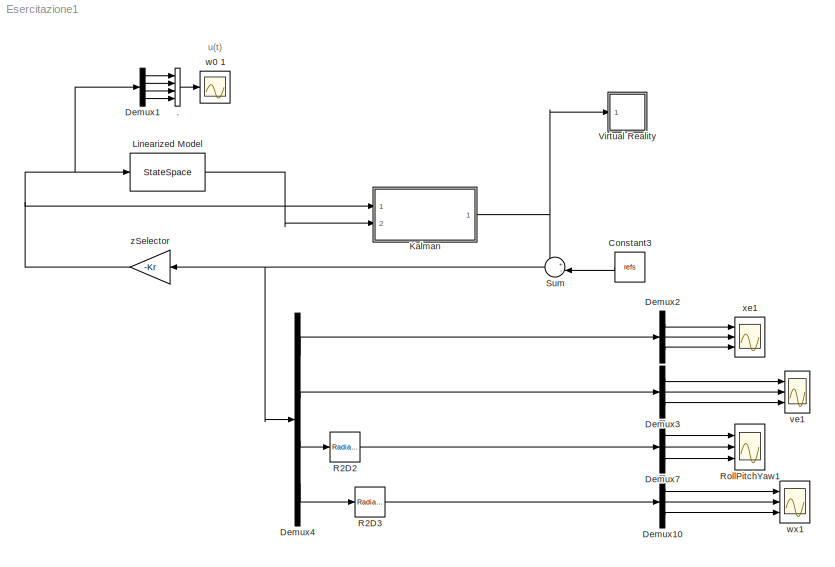
MODEL Esercitazione1
KIND model
BLOCK [Concatenate] .
  NumInputs = 4
  Ports = [4, 1]
  SID = 1
BLOCK [Constant] Constant3
  SID = 3
  Value = refs
BLOCK [Demux] Demux1
  DisplayOption = bar
  Ports = [1, 4]
  SID = 4
BLOCK [Demux] Demux10
  DisplayOption = bar
  Outputs = 3
  Ports = [1, 3]
  SID = 5
BLOCK [Demux] Demux2
  DisplayOption = bar
  Outputs = 3
  Ports = [1, 3]
  SID = 6
BLOCK [Demux] Demux3
  DisplayOption = bar
  Outputs = 3
  Ports = [1, 3]
  SID = 7
BLOCK [Demux] Demux4
  DisplayOption = bar
  Ports = [1, 4]
  SID = 8
BLOCK [Demux] Demux7
  DisplayOption = bar
  Outputs = 3
  Ports = [1, 3]
  SID = 9
BLOCK [SubSystem] Kalman
  FunctionWithSeparateData = off
  MaskHideContents = off
  MinAlgLoopOccurrences = off
  Opaque = off
  Ports = [2, 1]
  PropExecContextOutsideSubsystem = off
  RTWSystemCode = Auto
  RequestExecContextInheritance = off
  SID = 10
BLOCK [Demux] Kalman/Demux
  DisplayOption = bar
  Outputs = 3
  Ports = [1, 3]
  SID = 13
BLOCK [Demux] Kalman/Demux1
  DisplayOption = bar
  Outputs = 3
  Ports = [1, 3]
  SID = 14
BLOCK [Demux] Kalman/Demux2
  DisplayOption = bar
  Ports = [1, 4]
  SID = 15
BLOCK [Demux] Kalman/Demux3
  DisplayOption = bar
  Outputs = 3
  Ports = [1, 3]
  SID = 16
BLOCK [Demux] Kalman/Demux4
  DisplayOption = bar
  Outputs = 3
  Ports = [1, 3]
  SID = 17
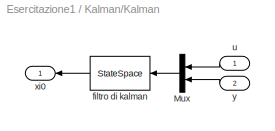
BLOCK [SubSystem] Kalman/Kalman
  FunctionWithSeparateData = off
  MaskHideContents = off
  MinAlgLoopOccurrences = off
  Opaque = off
  Ports = [2, 1]
  PropExecContextOutsideSubsystem = off
  RTWSystemCode = Auto
  RequestExecContextInheritance = off
  SID = 18
BLOCK [Mux] Kalman/Kalman/Mux
  DisplayOption = bar
  Inputs = [4 12]
  Ports = [2, 1]
  SID = 21
BLOCK [StateSpace] Kalman/Kalman/filtro di kalman
  A = Aoss
  B = Boss
  C = Coss
  D = Doss
  SID = 22
BLOCK [Inport] Kalman/Kalman/u
  IconDisplay = Port number
  SID = 19
BLOCK [Outport] Kalman/Kalman/xi0
  IconDisplay = Port number
  SID = 23
BLOCK [Inport] Kalman/Kalman/y
  IconDisplay = Port number
  Port = 2
  SID = 20
BLOCK [Reference] Kalman/R2D  REF=simulink_extras/Transformations/Radians\nto Degrees
  Ports = [1, 1]
  SID = 24
  SourceBlock = simulink_extras/Transformations/Radians\nto Degrees
  SourceType = RadiansToDegrees
BLOCK [Reference] Kalman/R2D1  REF=simulink_extras/Transformations/Radians\nto Degrees
  Ports = [1, 1]
  SID = 25
  SourceBlock = simulink_extras/Transformations/Radians\nto Degrees
  SourceType = RadiansToDegrees
BLOCK [Scope] Kalman/RollPitchYaw
  DataFormat = StructureWithTime
  Floating = off
  NumInputPorts = 3
  Ports = [3]
  SID = 26
  SampleTime = 0
  SaveName = ScopeData20
  ShowLegends = off
  YMax = 5~5~5
  YMin = -5~-5~-5
BLOCK [Sum] Kalman/Sum
  IconShape = round
  InputSameDT = off
  Inputs = +-
  OutDataTypeStr = Inherit: Inherit via internal rule
  Ports = [2, 1]
  SID = 27
  SaturateOnIntegerOverflow = off
BLOCK [Outport] Kalman/Xest
  IconDisplay = Port number
  SID = 31
BLOCK [Inport] Kalman/u
  IconDisplay = Port number
  SID = 11
BLOCK [Scope] Kalman/ve
  DataFormat = StructureWithTime
  Floating = off
  NumInputPorts = 3
  Ports = [3]
  SID = 28
  SampleTime = 0
  SaveName = ScopeData21
  ShowLegends = off
  YMax = 5~5~5
  YMin = -5~-5~-5
BLOCK [Scope] Kalman/wx
  DataFormat = StructureWithTime
  Floating = off
  NumInputPorts = 3
  Ports = [3]
  SID = 29
  SampleTime = 0
  SaveName = ScopeData22
  ShowLegends = off
  TimeRange = 15
  YMax = 5~5~5
  YMin = -5~-5~-5
BLOCK [Scope] Kalman/xe
  DataFormat = StructureWithTime
  Floating = off
  LimitDataPoints = off
  NumInputPorts = 3
  Ports = [3]
  SID = 30
  SampleTime = 0
  SaveName = ScopeData24
  ShowLegends = off
  TimeRange = 15
  YMax = 0.0035~0.007~-20
  YMin = -0.0035~-0.007~-20
BLOCK [Inport] Kalman/y
  IconDisplay = Port number
  Port = 2
  SID = 12
BLOCK [StateSpace] Linearized Model
  A = A
  B = B
  C = C
  D = [D]
  SID = 33
  X0 = [0 0 0 0 0 0 0 0 0 0 0 0]
BLOCK [Reference] R2D2  REF=simulink_extras/Transformations/Radians\nto Degrees
  Ports = [1, 1]
  SID = 34
  SourceBlock = simulink_extras/Transformations/Radians\nto Degrees
  SourceType = RadiansToDegrees
BLOCK [Reference] R2D3  REF=simulink_extras/Transformations/Radians\nto Degrees
  Ports = [1, 1]
  SID = 35
  SourceBlock = simulink_extras/Transformations/Radians\nto Degrees
  SourceType = RadiansToDegrees
BLOCK [Scope] RollPitchYaw1
  DataFormat = StructureWithTime
  Floating = off
  NumInputPorts = 3
  Ports = [3]
  SID = 36
  SampleTime = 0
  SaveName = ScopeData1
  ShowLegends = off
  YMax = 5~5~5
  YMin = -5~-5~-5
BLOCK [Sum] Sum
  IconShape = round
  InputSameDT = off
  Inputs = +-|
  OutDataTypeStr = Inherit: Inherit via internal rule
  Ports = [2, 1]
  SID = 37
  SaturateOnIntegerOverflow = off
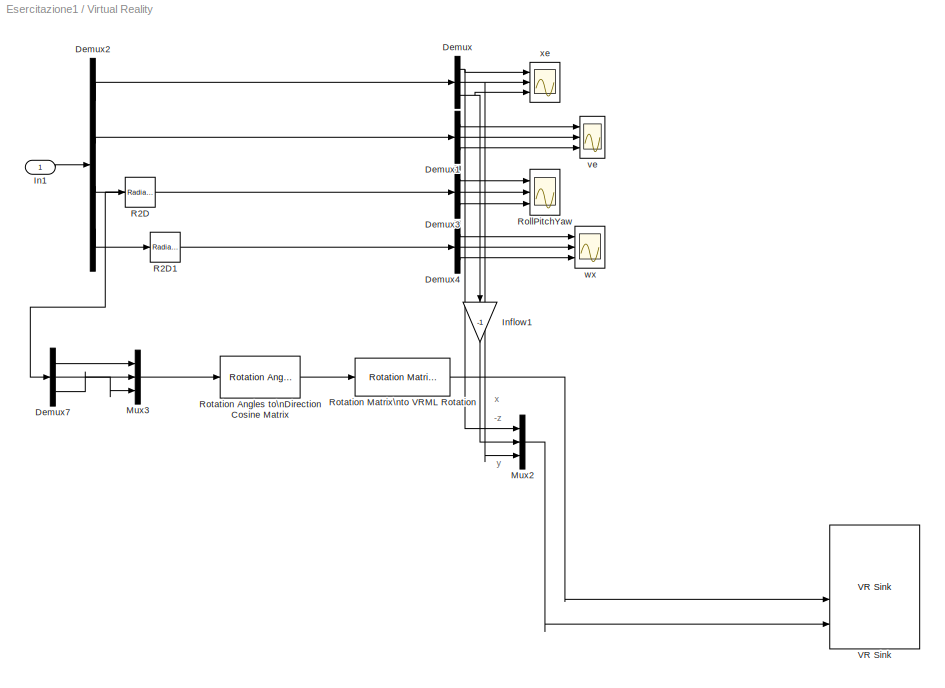
BLOCK [SubSystem] Virtual Reality
  FunctionWithSeparateData = off
  MaskHideContents = off
  MinAlgLoopOccurrences = off
  Opaque = off
  Ports = [1]
  PropExecContextOutsideSubsystem = off
  RTWSystemCode = Auto
  RequestExecContextInheritance = off
  SID = 39
BLOCK [Demux] Virtual Reality/Demux
  DisplayOption = bar
  Outputs = 3
  Ports = [1, 3]
  SID = 42
BLOCK [Demux] Virtual Reality/Demux1
  DisplayOption = bar
  Outputs = 3
  Ports = [1, 3]
  SID = 43
BLOCK [Demux] Virtual Reality/Demux2
  DisplayOption = bar
  Ports = [1, 4]
  SID = 46
BLOCK [Demux] Virtual Reality/Demux3
  DisplayOption = bar
  Outputs = 3
  Ports = [1, 3]
  SID = 47
BLOCK [Demux] Virtual Reality/Demux4
  DisplayOption = bar
  Outputs = 3
  Ports = [1, 3]
  SID = 48
BLOCK [Demux] Virtual Reality/Demux7
  DisplayOption = bar
  Outputs = 3
  Ports = [1, 3]
  SID = 51
BLOCK [Inport] Virtual Reality/In1
  IconDisplay = Port number
  SID = 40
BLOCK [Gain] Virtual Reality/Inflow1
  Gain = -1
  OutDataTypeStr = Inherit: Inherit via internal rule
  ParamDataTypeStr = Inherit: Inherit via internal rule
  SID = 54
  SaturateOnIntegerOverflow = off
BLOCK [Mux] Virtual Reality/Mux2
  DisplayOption = bar
  Inputs = 3
  Ports = [3, 1]
  SID = 57
BLOCK [Mux] Virtual Reality/Mux3
  DisplayOption = bar
  Inputs = 3
  Ports = [3, 1]
  SID = 58
BLOCK [Reference] Virtual Reality/R2D  REF=simulink_extras/Transformations/Radians\nto Degrees
  Ports = [1, 1]
  SID = 60
  SourceBlock = simulink_extras/Transformations/Radians\nto Degrees
  SourceType = RadiansToDegrees
BLOCK [Reference] Virtual Reality/R2D1  REF=simulink_extras/Transformations/Radians\nto Degrees
  Ports = [1, 1]
  SID = 61
  SourceBlock = simulink_extras/Transformations/Radians\nto Degrees
  SourceType = RadiansToDegrees
BLOCK [Scope] Virtual Reality/RollPitchYaw
  DataFormat = StructureWithTime
  Floating = off
  NumInputPorts = 3
  Ports = [3]
  SID = 64
  SampleTime = 0
  SaveName = ScopeData6
  ShowLegends = off
  YMax = 5~5~5
  YMin = -5~-5~-5
BLOCK [Reference] Virtual Reality/Rotation Angles to\nDirection Cosine Matrix  REF=aerolibtransform2/Rotation Angles to\nDirection Cosine Matrix
  AttributesFormatString = Rotation Order: %<rotationOrder>
  Ports = [1, 1]
  SID = 66
  SourceBlock = aerolibtransform2/Rotation Angles to\nDirection Cosine Matrix
  SourceType = Ang2DCM
  rotationOrder = ZYX
BLOCK [Reference] Virtual Reality/Rotation Matrix\nto VRML Rotation  REF=vrlib/Utilities/Rotation Matrix\nto VRML Rotation
  Ports = [1, 1]
  SID = 68
  SourceBlock = vrlib/Utilities/Rotation Matrix\nto VRML Rotation
  SourceType = Rotation Matrix to VRML Rotation
  maxzero = 1e-12
BLOCK [Reference] Virtual Reality/VR Sink  REF=vrlib/VR Sink
  AllowVariableSize = off
  AutoView = off
  FieldsWritten = Lin.rotation.4.1.1.double#Lin.translation.3.1.1.double#NonLin.rotation.4.1.1.double#NonLin.translation.3.1.1.double
  Ports = [4]
  RemoteChange = off
  RemoteView = off
  SID = 70
  SampleTime = 0.05
  SourceBlock = vrlib/VR Sink
  SourceType = Virtual Reality Sink
  VideoDimensions = []
  ViewEnable = on
  WorldFileName = aero.wrl
BLOCK [Scope] Virtual Reality/ve
  DataFormat = StructureWithTime
  Floating = off
  NumInputPorts = 3
  Ports = [3]
  SID = 71
  SampleTime = 0
  SaveName = ScopeData2
  ShowLegends = off
  YMax = 5~5~5
  YMin = -5~-5~-5
BLOCK [Scope] Virtual Reality/wx
  DataFormat = StructureWithTime
  Floating = off
  NumInputPorts = 3
  Ports = [3]
  SID = 73
  SampleTime = 0
  SaveName = ScopeData9
  ShowLegends = off
  TimeRange = 15
  YMax = 5~5~5
  YMin = -5~-5~-5
BLOCK [Scope] Virtual Reality/xe
  DataFormat = StructureWithTime
  Floating = off
  NumInputPorts = 3
  Ports = [3]
  SID = 75
  SampleTime = 0
  ShowLegends = off
  TimeRange = 15
  YMax = -100~-30~300
  YMin = -190~-150~-250
BLOCK [Scope] ve1
  DataFormat = StructureWithTime
  Floating = off
  NumInputPorts = 3
  Ports = [3]
  SID = 81
  SampleTime = 0
  SaveName = ScopeData3
  ShowLegends = off
  YMax = 5~5~5
  YMin = -5~-5~-5
BLOCK [Scope] w0  1
  DataFormat = StructureWithTime
  Floating = off
  NumInputPorts = 1
  Ports = [1]
  SID = 82
  SampleTime = 0
  SaveName = ScopeData4
  ShowLegends = off
  YMax = 4700
  YMin = 2700
BLOCK [Scope] wx1
  DataFormat = StructureWithTime
  Floating = off
  NumInputPorts = 3
  Ports = [3]
  SID = 83
  SampleTime = 0
  SaveName = ScopeData5
  ShowLegends = off
  TimeRange = 15
  YMax = 5~5~5
  YMin = -5~-5~-5
BLOCK [Scope] xe1
  DataFormat = StructureWithTime
  Floating = off
  LimitDataPoints = off
  NumInputPorts = 3
  Ports = [3]
  SID = 84
  SampleTime = 0
  SaveName = ScopeData7
  ShowLegends = off
  TimeRange = 15
  YMax = 3e+278~3e+278~3e+278
  YMin = -2.5e+277~-2.5e+277~-2.5e+277
BLOCK [Gain] zSelector
  Gain = -Kr
  Multiplication = Matrix(K*u)
  OutDataTypeStr = Inherit: Inherit via internal rule
  ParamDataTypeStr = Inherit: Inherit via internal rule
  SID = 85
  SaturateOnIntegerOverflow = off
ANNOTATION (root): u(t)
ANNOTATION Kalman: 
ANNOTATION Virtual Reality: -z
ANNOTATION Virtual Reality: x
ANNOTATION Virtual Reality: y
LINE .:1 -> w0  1:1
LINE Constant3:1 -> Sum:2
LINE Demux10:1 -> wx1:1
LINE Demux10:2 -> wx1:2
LINE Demux10:3 -> wx1:3
LINE Demux1:1 -> .:1
LINE Demux1:2 -> .:2
LINE Demux1:3 -> .:3
LINE Demux1:4 -> .:4
LINE Demux2:1 -> xe1:1
LINE Demux2:2 -> xe1:2
LINE Demux2:3 -> xe1:3
LINE Demux3:1 -> ve1:1
LINE Demux3:2 -> ve1:2
LINE Demux3:3 -> ve1:3
LINE Demux4:1 -> Demux2:1
LINE Demux4:2 -> Demux3:1
LINE Demux4:3 -> R2D2:1
LINE Demux4:4 -> R2D3:1
LINE Demux7:1 -> RollPitchYaw1:1
LINE Demux7:2 -> RollPitchYaw1:2
LINE Demux7:3 -> RollPitchYaw1:3
LINE Kalman/Demux1:1 -> Kalman/ve:1
LINE Kalman/Demux1:2 -> Kalman/ve:2
LINE Kalman/Demux1:3 -> Kalman/ve:3
LINE Kalman/Demux2:1 -> Kalman/Demux:1
LINE Kalman/Demux2:2 -> Kalman/Demux1:1
LINE Kalman/Demux2:3 -> Kalman/R2D:1
LINE Kalman/Demux2:4 -> Kalman/R2D1:1
LINE Kalman/Demux3:1 -> Kalman/RollPitchYaw:1
LINE Kalman/Demux3:2 -> Kalman/RollPitchYaw:2
LINE Kalman/Demux3:3 -> Kalman/RollPitchYaw:3
LINE Kalman/Demux4:1 -> Kalman/wx:1
LINE Kalman/Demux4:2 -> Kalman/wx:2
LINE Kalman/Demux4:3 -> Kalman/wx:3
LINE Kalman/Demux:1 -> Kalman/xe:1
LINE Kalman/Demux:2 -> Kalman/xe:2
LINE Kalman/Demux:3 -> Kalman/xe:3
LINE Kalman/Kalman/Mux:1 -> Kalman/Kalman/filtro di kalman:1
LINE Kalman/Kalman/filtro di kalman:1 -> Kalman/Kalman/xi0:1
LINE Kalman/Kalman/u:1 -> Kalman/Kalman/Mux:1
LINE Kalman/Kalman/y:1 -> Kalman/Kalman/Mux:2
NET Kalman/Kalman:1 -> Kalman/Demux2:1, Kalman/Sum:2, Kalman/Xest:1
LINE Kalman/R2D1:1 -> Kalman/Demux4:1
LINE Kalman/R2D:1 -> Kalman/Demux3:1
LINE Kalman/u:1 -> Kalman/Kalman:1
NET Kalman/y:1 -> Kalman/Kalman:2, Kalman/Sum:1
NET Kalman:1 -> Sum:1, Virtual Reality:1
LINE Linearized Model:1 -> Kalman:2
LINE R2D2:1 -> Demux7:1
LINE R2D3:1 -> Demux10:1
NET Sum:1 -> Demux4:1, zSelector:1
LINE Virtual Reality/Demux1:1 -> Virtual Reality/ve:1
LINE Virtual Reality/Demux1:2 -> Virtual Reality/ve:2
LINE Virtual Reality/Demux1:3 -> Virtual Reality/ve:3
LINE Virtual Reality/Demux2:1 -> Virtual Reality/Demux:1
LINE Virtual Reality/Demux2:2 -> Virtual Reality/Demux1:1
LINE Virtual Reality/Demux2:3 -> Virtual Reality/R2D:1
LINE Virtual Reality/Demux2:4 -> Virtual Reality/R2D1:1
LINE Virtual Reality/Demux3:1 -> Virtual Reality/RollPitchYaw:1
LINE Virtual Reality/Demux3:2 -> Virtual Reality/RollPitchYaw:2
LINE Virtual Reality/Demux3:3 -> Virtual Reality/RollPitchYaw:3
LINE Virtual Reality/Demux4:1 -> Virtual Reality/wx:1
LINE Virtual Reality/Demux4:2 -> Virtual Reality/wx:2
LINE Virtual Reality/Demux4:3 -> Virtual Reality/wx:3
LINE Virtual Reality/Demux7:1 -> Virtual Reality/Mux3:1
LINE Virtual Reality/Demux7:2 -> Virtual Reality/Mux3:3
LINE Virtual Reality/Demux7:3 -> Virtual Reality/Mux3:2
NET Virtual Reality/Demux:1 -> Virtual Reality/Mux2:1, Virtual Reality/xe:1
NET Virtual Reality/Demux:2 -> Virtual Reality/Mux2:3, Virtual Reality/xe:2
NET Virtual Reality/Demux:3 -> Virtual Reality/Inflow1:1, Virtual Reality/xe:3
LINE Virtual Reality/In1:1 -> Virtual Reality/Demux2:1
LINE Virtual Reality/Inflow1:1 -> Virtual Reality/Mux2:2
LINE Virtual Reality/Mux2:1 -> Virtual Reality/VR Sink:4
LINE Virtual Reality/Mux3:1 -> Virtual Reality/Rotation Angles to\nDirection Cosine Matrix:1
LINE Virtual Reality/R2D1:1 -> Virtual Reality/Demux4:1
NET Virtual Reality/R2D:1 -> Virtual Reality/Demux3:1, Virtual Reality/Demux7:1
LINE Virtual Reality/Rotation Angles to\nDirection Cosine Matrix:1 -> Virtual Reality/Rotation Matrix\nto VRML Rotation:1
LINE Virtual Reality/Rotation Matrix\nto VRML Rotation:1 -> Virtual Reality/VR Sink:3
NET zSelector:1 -> Demux1:1, Kalman:1, Linearized Model:1
note: NET lines group one-source signal fan-out (src -> all destinations, sorted); 1:1 wires keep LINE
